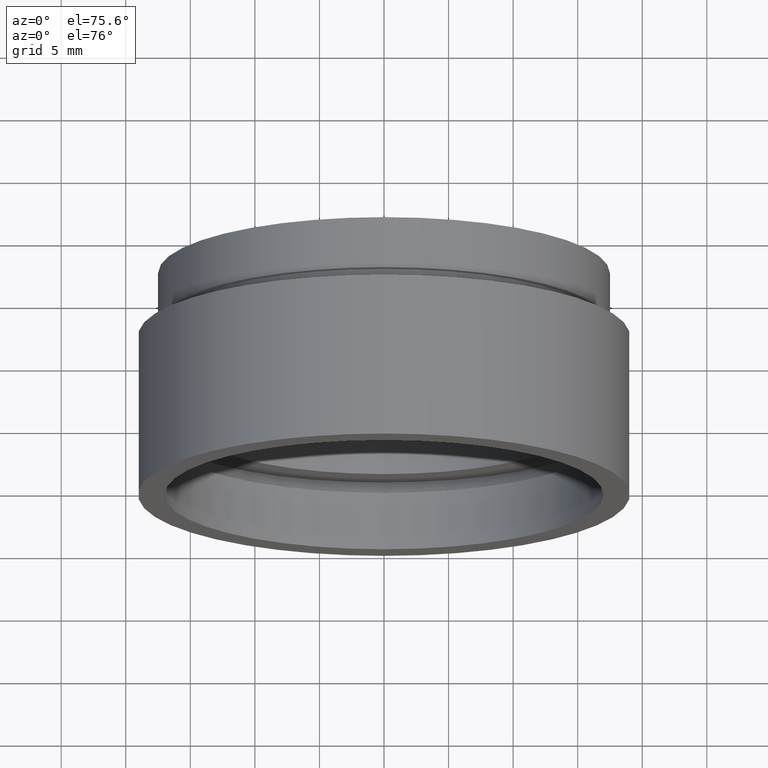
[diagram: clean part render]
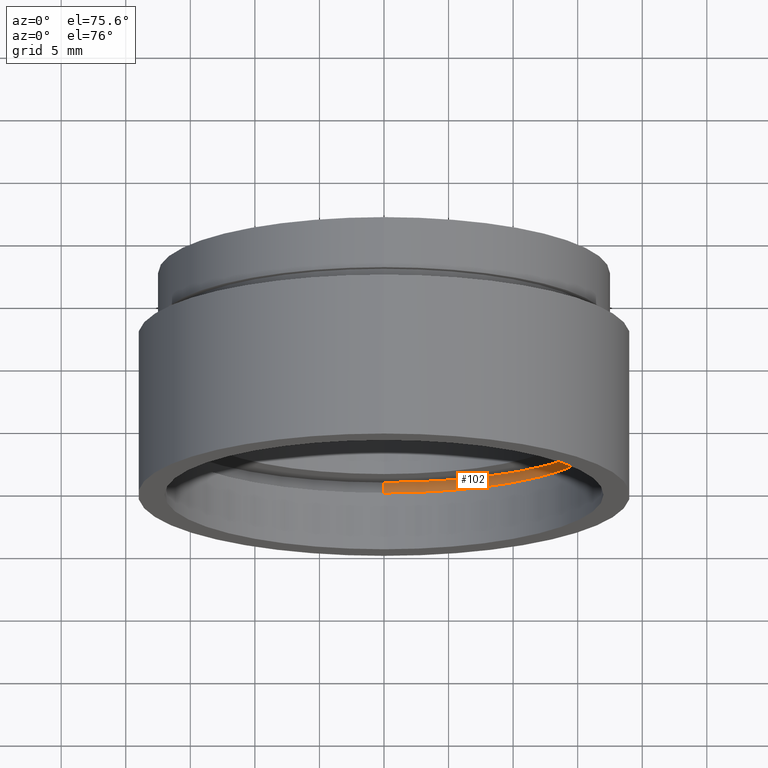
[diagram: same view with one face highlighted and labeled with its STEP entity id]
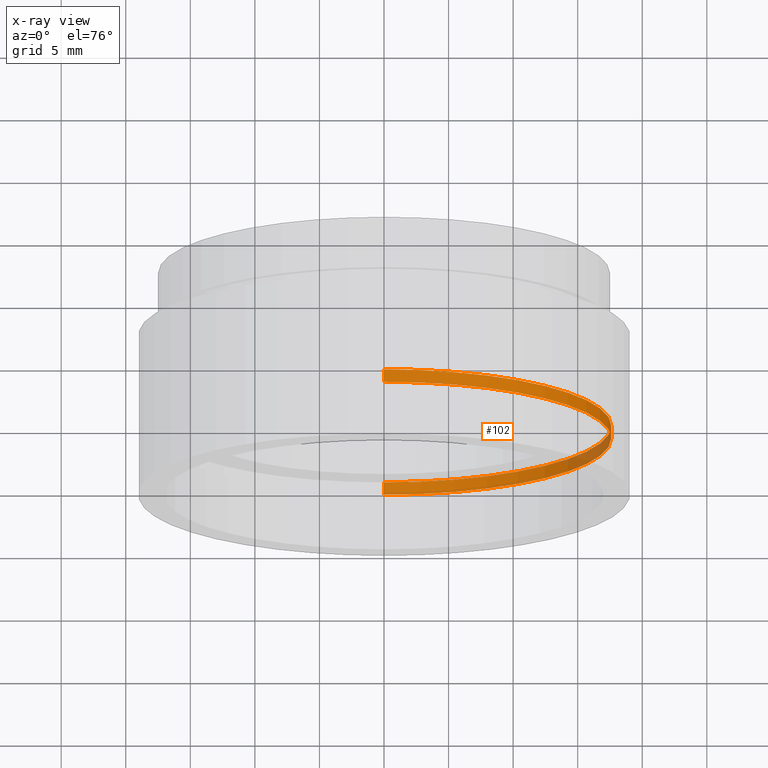
[diagram: x-ray of the same camera — body ghosted, the highlighted face saturated]
A machine part, auxiliary view. The second image highlights one B-rep face of the part: STEP entity #102.
The next image is the same camera in x-ray: the body ghosted, the highlighted face saturated — about 10% of this face is hidden behind the body in this view.
In plain terms, the highlighted cylindrical surface (partial cylindrical patch) has radius 17.6 mm, axis along (-0, 1, -0).
Its self-contained STEP definition (entity closure, byte-faithful):
#54 = EDGE_CURVE ( 'NONE', #556, #381, #310, .T. ) ;
#62 = DIRECTION ( 'NONE',  ( 0.0000000000000000000, 0.0000000000000000000, 1.000000000000000000 ) ) ;
#77 = LINE ( 'NONE', #531, #84 ) ;
#79 = ORIENTED_EDGE ( 'NONE', *, *, #502, .T. ) ;
#81 = DIRECTION ( 'NONE',  ( -0.0000000000000000000, 1.000000000000000000, -0.0000000000000000000 ) ) ;
#84 = VECTOR ( 'NONE', #196, 1000.000000000000000 ) ;
#102 = ADVANCED_FACE ( 'NONE', ( #506 ), #131, .F. ) ;
#107 = VERTEX_POINT ( 'NONE', #119 ) ;
#108 = CARTESIAN_POINT ( 'NONE',  ( 2.155378366499344400E-015, 5.499999999999976900, -17.60000000000002300 ) ) ;
#119 = CARTESIAN_POINT ( 'NONE',  ( 0.0000000000000000000, 4.499999999999976000, 17.60000000000002300 ) ) ;
#127 = ORIENTED_EDGE ( 'NONE', *, *, #608, .F. ) ;
#131 = CYLINDRICAL_SURFACE ( 'NONE', #166, 17.60000000000002300 ) ;
#149 = CARTESIAN_POINT ( 'NONE',  ( 0.0000000000000000000, 4.499999999999976000, 0.0000000000000000000 ) ) ;
#166 = AXIS2_PLACEMENT_3D ( 'NONE', #545, #349, #62 ) ;
#172 = DIRECTION ( 'NONE',  ( -0.0000000000000000000, 1.000000000000000000, -0.0000000000000000000 ) ) ;
#183 = EDGE_CURVE ( 'NONE', #365, #381, #557, .T. ) ;
#196 = DIRECTION ( 'NONE',  ( -0.0000000000000000000, 1.000000000000000000, -0.0000000000000000000 ) ) ;
#212 = CARTESIAN_POINT ( 'NONE',  ( 0.0000000000000000000, 5.499999999999976900, 17.60000000000002300 ) ) ;
#239 = DIRECTION ( 'NONE',  ( 0.0000000000000000000, 0.0000000000000000000, 1.000000000000000000 ) ) ;
#240 = CARTESIAN_POINT ( 'NONE',  ( 2.155378366499344400E-015, 4.499999999999976000, -17.60000000000002300 ) ) ;
#264 = AXIS2_PLACEMENT_3D ( 'NONE', #362, #81, #350 ) ;
#293 = DIRECTION ( 'NONE',  ( -0.0000000000000000000, 1.000000000000000000, -0.0000000000000000000 ) ) ;
#310 = CIRCLE ( 'NONE', #264, 17.60000000000002300 ) ;
#349 = DIRECTION ( 'NONE',  ( -0.0000000000000000000, 1.000000000000000000, -0.0000000000000000000 ) ) ;
#350 = DIRECTION ( 'NONE',  ( 0.0000000000000000000, 0.0000000000000000000, 1.000000000000000000 ) ) ;
#359 = CARTESIAN_POINT ( 'NONE',  ( 2.155378366499344400E-015, 161.3761669434274500, -17.60000000000002300 ) ) ;
#362 = CARTESIAN_POINT ( 'NONE',  ( 0.0000000000000000000, 5.499999999999976900, 0.0000000000000000000 ) ) ;
#363 = EDGE_LOOP ( 'NONE', ( #598, #127, #79, #404 ) ) ;
#365 = VERTEX_POINT ( 'NONE', #240 ) ;
#381 = VERTEX_POINT ( 'NONE', #108 ) ;
#404 = ORIENTED_EDGE ( 'NONE', *, *, #54, .T. ) ;
#484 = AXIS2_PLACEMENT_3D ( 'NONE', #149, #293, #239 ) ;
#502 = EDGE_CURVE ( 'NONE', #107, #556, #77, .T. ) ;
#506 = FACE_OUTER_BOUND ( 'NONE', #363, .T. ) ;
#531 = CARTESIAN_POINT ( 'NONE',  ( 0.0000000000000000000, 161.3761669434274500, 17.60000000000002300 ) ) ;
#532 = CIRCLE ( 'NONE', #484, 17.60000000000002300 ) ;
#545 = CARTESIAN_POINT ( 'NONE',  ( 0.0000000000000000000, 161.3761669434274500, 0.0000000000000000000 ) ) ;
#556 = VERTEX_POINT ( 'NONE', #212 ) ;
#557 = LINE ( 'NONE', #359, #623 ) ;
#598 = ORIENTED_EDGE ( 'NONE', *, *, #183, .F. ) ;
#608 = EDGE_CURVE ( 'NONE', #107, #365, #532, .T. ) ;
#623 = VECTOR ( 'NONE', #172, 1000.000000000000000 ) ;